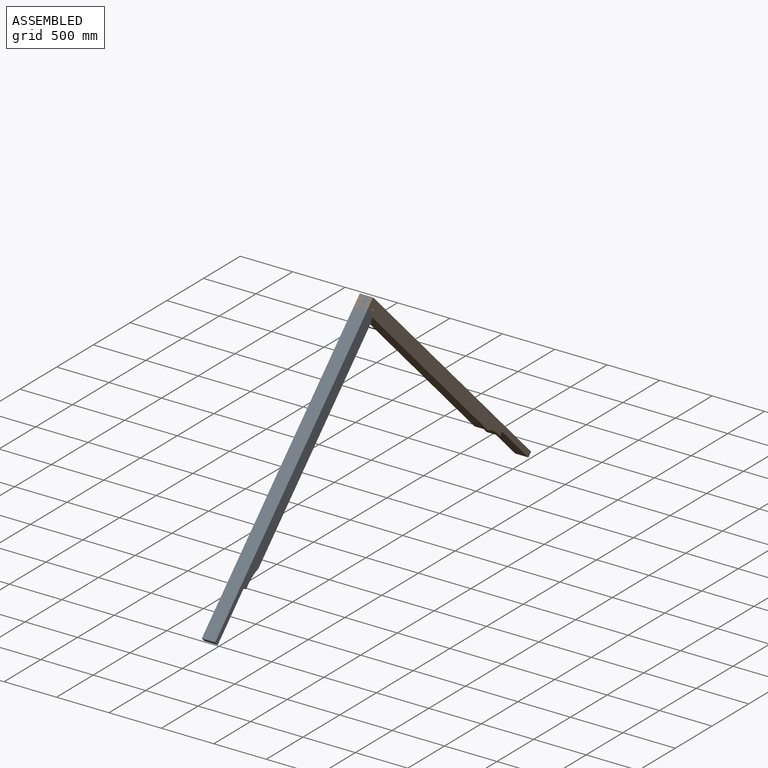
[diagram: assembled view]
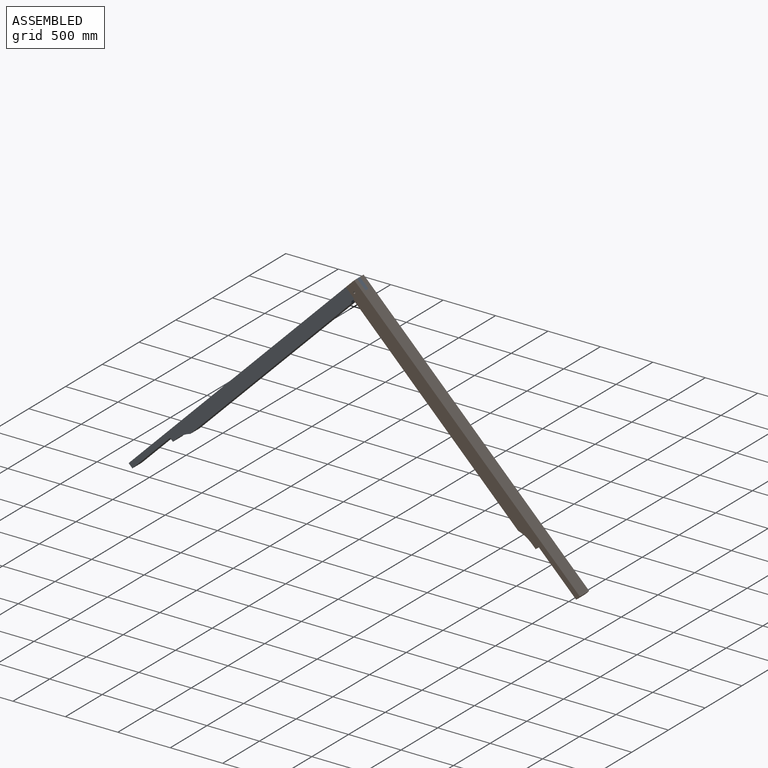
[diagram: assembled view, second angle]
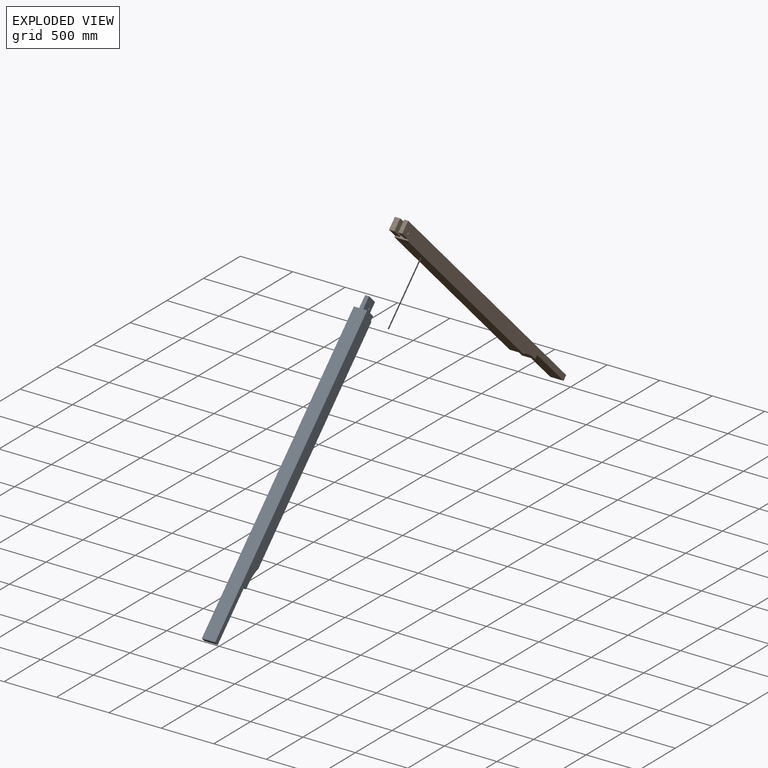
[diagram: exploded view]
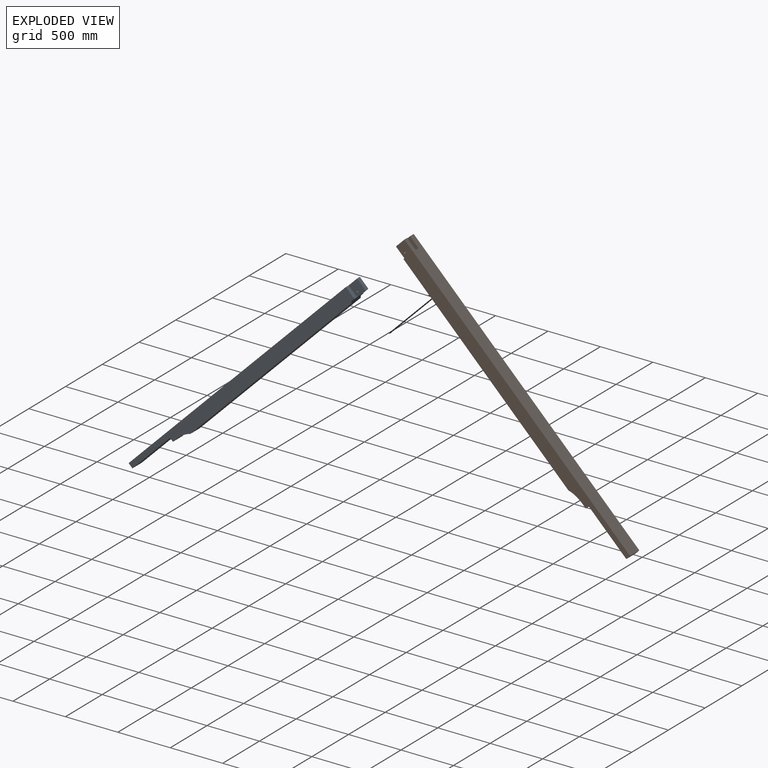
[diagram: exploded view, second angle]
ASSEMBLY  parts=2 mates=3
PART A: 17 faces, bbox 127x127x3043.2 mm
  f0: plane 3043.22x127mm, normal (0,1,0), area 376328.3mm2, adj f1,f2,f3,f5,f12,f13,f14,f15
  f1: plane 2928.93x127mm, normal (1,0,0), area 326966.3mm2, adj f0,f2,f4,f6,f7,f8,f9,f10
  f2: plane 127x50.8mm, normal (0,0,-1), area 6451.6mm2, adj f0,f1,f3,f6
  f3: plane 2928.93x127mm, normal (-1,0,0), area 326966.3mm2, adj f0,f2,f4,f6,f7,f8,f9,f10
  f4: plane 2171.76x127mm, normal (0,-1,0), area 275814mm2, adj f1,f3,f9,f11
  f5: plane 114.3x38.1mm, normal (0,0,1), area 4354.8mm2, adj f0,f10,f12,f14
  f6: plane 508x127mm, normal (0,-1,0), area 64516mm2, adj f1,f2,f3,f7
  f7: plane 127x38.1mm, normal (0,0,-1), area 4838.7mm2, adj f1,f3,f6,f8
  f8: plane 127x50.8mm, normal (0,-1,0), area 6451.6mm2, adj f1,f3,f7,f9
  f9: cylinder r=304.8mm len=147.56mm, axis (1,0,0), area 19562.3mm2, adj f1,f3,f4,f8
  f10: plane 152.4x127mm, normal (0,-1,0), area 9193.5mm2, adj f1,f3,f5,f11,f12,f13,f14,f15
  f11: plane 127x12.7mm, normal (0,-0.71,0.71), area 2281mm2, adj f1,f3,f4,f10
  f12: plane 114.3x114.3mm, normal (1,0,0), area 12779.5mm2, adj f0,f5,f10,f13,f16
  f13: plane 114.3x50.8mm, normal (0,0,1), area 5806.4mm2, adj f0,f1,f10,f12
  f14: plane 114.3x114.3mm, normal (-1,0,0), area 12779.5mm2, adj f0,f5,f10,f15,f16
  f15: plane 114.3x38.1mm, normal (0,0,1), area 4354.8mm2, adj f0,f3,f10,f14
  f16: cylinder r=9.53mm len=38.1mm, axis (-1,0,0), area 2280.2mm2, adj f12,f14
PART B: 18 faces, bbox 127x127x3043.2 mm
  f0: plane 114.3x50.8mm, normal (0,0,1), area 5806.4mm2, adj f1,f2,f4,f14
  f1: plane 114.3x50.8mm, normal (0,-1,0), area 5806.4mm2, adj f0,f4,f12,f14
  f2: plane 3043.22x127mm, normal (0,1,0), area 382134.7mm2, adj f0,f3,f4,f6,f7,f12,f14,f15
  f3: plane 3043.22x127mm, normal (1,0,0), area 340310.3mm2, adj f2,f5,f6,f7,f8,f9,f10,f11
  f4: plane 3043.22x127mm, normal (-1,0,0), area 340310.3mm2, adj f0,f1,f2,f5,f7,f8,f9,f10
  f5: plane 2222.56x127mm, normal (0,-1,0), area 282265.6mm2, adj f3,f4,f11,f12
  f6: plane 114.3x38.1mm, normal (0,0,1), area 4354.8mm2, adj f2,f3,f13,f15
  f7: plane 127x50.8mm, normal (0,0,-1), area 6451.6mm2, adj f2,f3,f4,f8
  f8: plane 508x127mm, normal (0,-1,0), area 64516mm2, adj f3,f4,f7,f9
  f9: plane 127x38.1mm, normal (0,0,-1), area 4838.7mm2, adj f3,f4,f8,f10
  f10: plane 127x50.8mm, normal (0,-1,0), area 6451.6mm2, adj f3,f4,f9,f11
  f11: cylinder r=304.8mm len=147.56mm, axis (1,0,0), area 19562.3mm2, adj f3,f4,f5,f10
  f12: plane 127x127mm, normal (0,0,1), area 5967.7mm2, adj f1,f2,f3,f4,f5,f13,f14,f15
  f13: plane 114.3x38.1mm, normal (0,-1,0), area 4354.8mm2, adj f3,f6,f12,f15
  f14: plane 114.3x114.3mm, normal (1,0,0), area 12779.5mm2, adj f0,f1,f2,f12,f17
  f15: plane 114.3x114.3mm, normal (-1,0,0), area 12779.5mm2, adj f2,f6,f12,f13,f16
  f16: cylinder r=9.53mm len=38.1mm, axis (1,0,0), area 2280.2mm2, adj f3,f15
  f17: cylinder r=9.53mm len=50.8mm, axis (1,0,0), area 3040.2mm2, adj f4,f14
PLACE A rot(axis=(0,0.38,0.92),180deg) t=(-59.55,1.36,-27.39)mm
PLACE B rot(axis=(1,0,0),45deg) t=(67.45,1.36,-27.39)mm fixed
MATE planar B.f13 <-> A.f15  axis (0,-0.71,-0.71) through (48.4,-39.05,-148.62)mm
MATE planar B.f12 <-> A.f10  axis (0,-0.71,0.71) through (8.58,29.64,-160.76)mm
MATE planar B.f15 <-> A.f14  axis (-1,0,0) through (29.35,1.36,-107.61)mm
